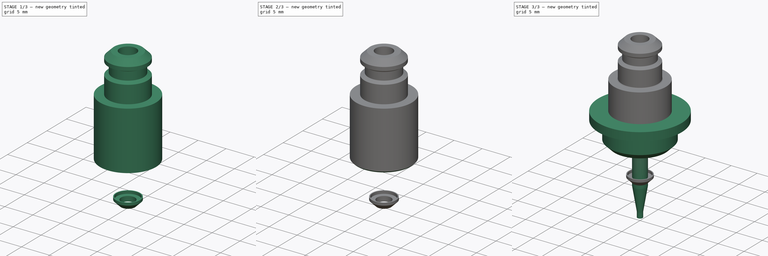
[diagram: build sequence overview — one tinted view per stage of 3, left to right]
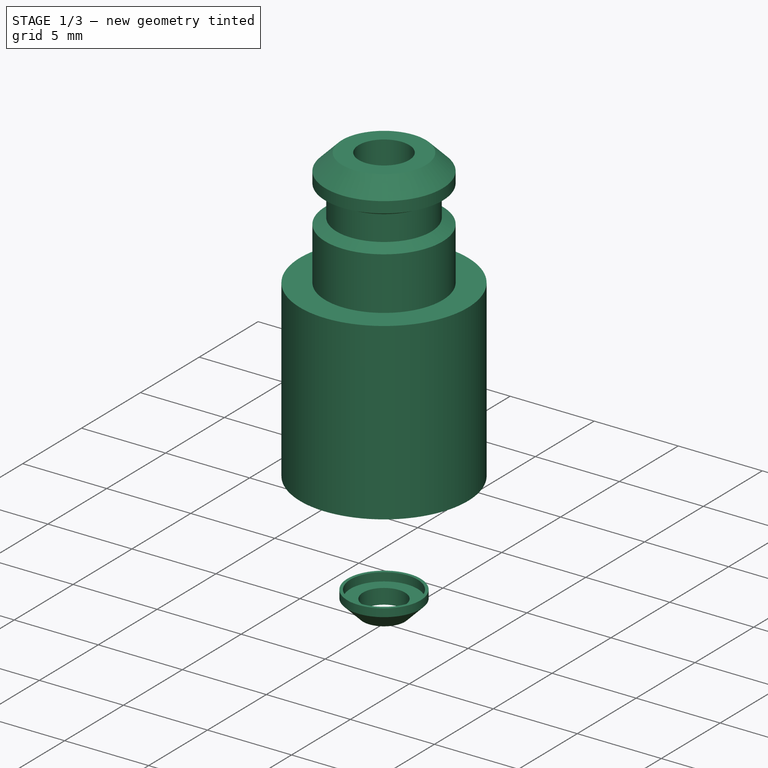
[diagram: stage 1 of 3 — iso view after this stage's code; geometry added in this stage tinted green]
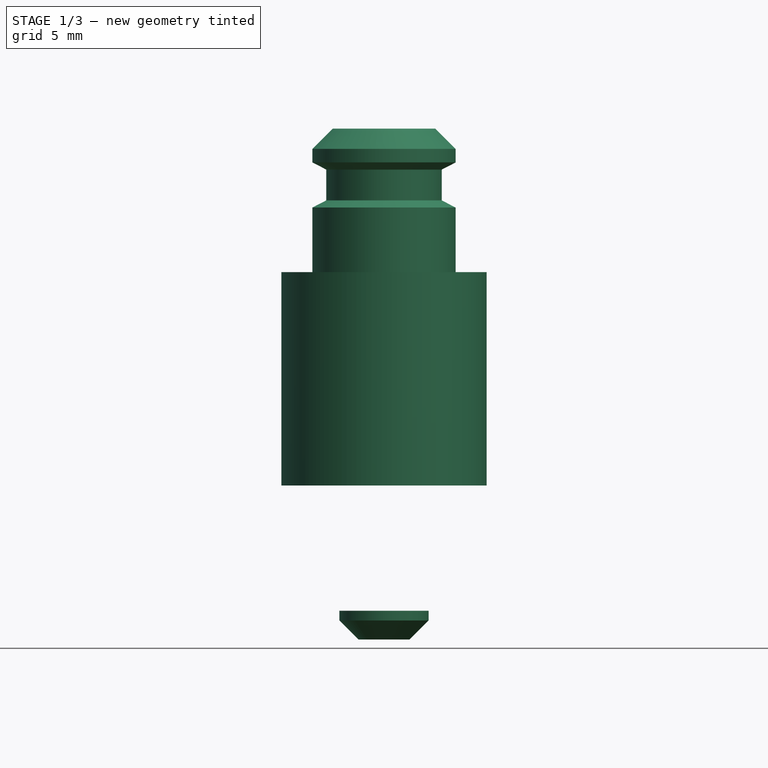
[diagram: stage 1 of 3 — front view after this stage's code; geometry added in this stage tinted green]
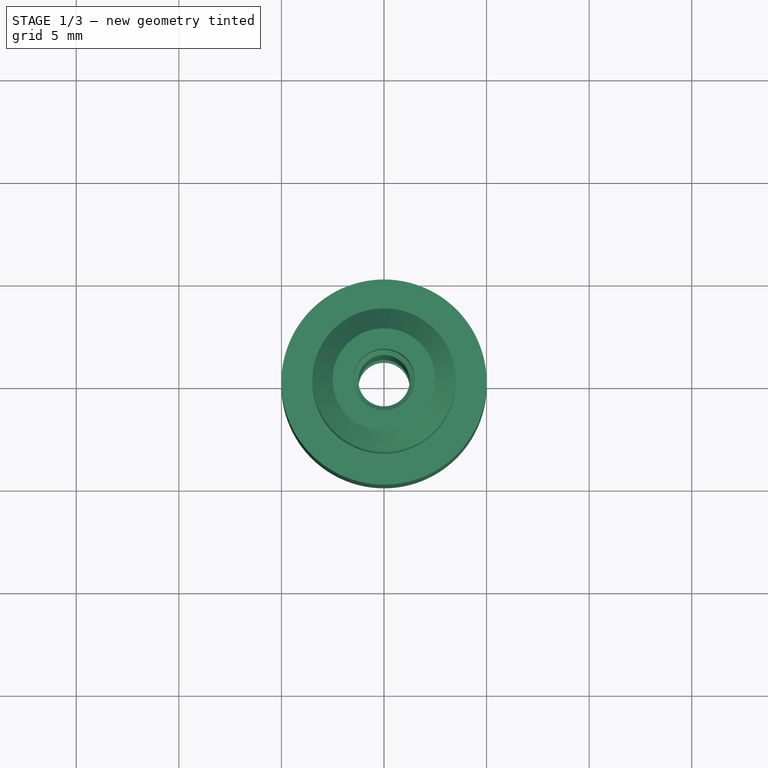
[diagram: stage 1 of 3 — top view after this stage's code; geometry added in this stage tinted green]
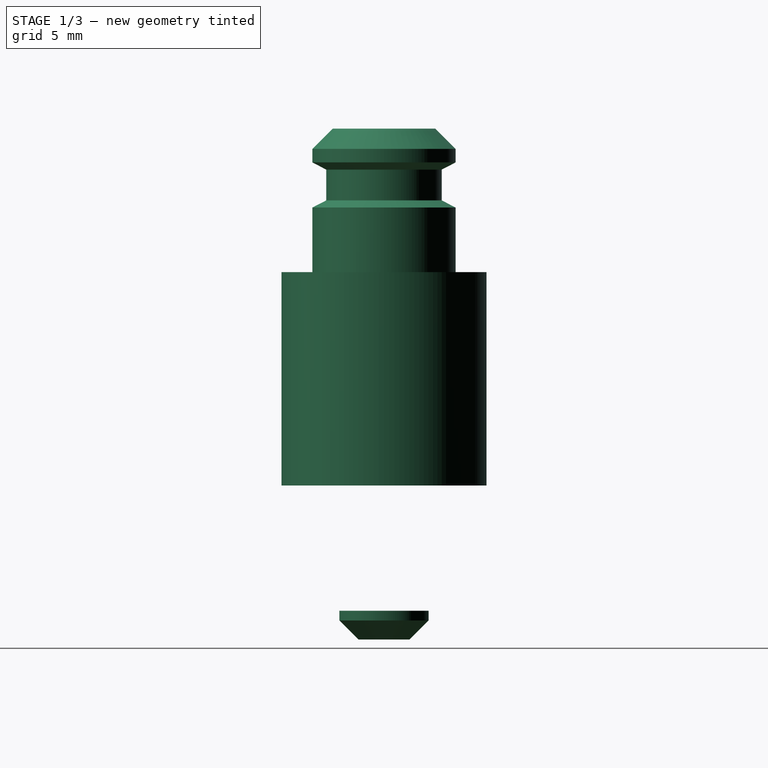
[diagram: stage 1 of 3 — right view after this stage's code; geometry added in this stage tinted green]
FCSTD DOCUMENT  (FreeCAD 0.15R4671 (Git))
Label: Juki-503
License: CreativeCommons Attribution-ShareAlike
LicenseURL: http://creativecommons.org/licenses/by-sa/4.0/
objects: Sketcher::SketchObject×5, PartDesign::Revolution×4, PartDesign::Chamfer×3, Part::Feature×2, PartDesign::Pocket×1
note: 20 computed .brp shape members not serialized (recipe doc carries the construction recipe); baked Part::Feature solids carry a one-line shape summary decoded from their .brp

FEATURE [Sketcher::SketchObject] Sketch001  label="plastic tip spring retainer"
  Placement = pos=(0,0,0) rot=(1,0,0;1.5708rad)
  sketch-geometry (4):
    g0: LineSegment StartX=1.25 StartY=7.5 StartZ=0 EndX=2.175 EndY=7.5 EndZ=0
    g1: LineSegment StartX=1.25 StartY=6.1 StartZ=0 EndX=1.25 EndY=7.5 EndZ=0
    g2: LineSegment StartX=2.175 StartY=7.5 StartZ=0 EndX=2.175 EndY=7.025 EndZ=0
    g3: LineSegment StartX=2.175 StartY=7.025 StartZ=0 EndX=1.25 EndY=6.1 EndZ=0
  constraints (12):
    c: Horizontal(g0)
    c: Vertical(g1)
    c: Coincident(g0,g1)
    c: DistanceY(g1) = 1.4
    c: DistanceX(g0) = 2.175
    c: DistanceX(g1) = 1.25
    c: DistanceY(g0) = 7.5
    c: Coincident(g0,g2)
    c: Vertical(g2)
    c: Coincident(g2,g3)
    c: Coincident(g3,g1)
    c: Angle(g3) = -2.35619
FEATURE [PartDesign::Revolution] Revolution001  label="plastic tip spring retainer"
  Angle = 360
  Axis = (0,0,1)
  Base = (0,0,0)
  Placement = pos=(0,0,0) rot=(1,0,0;1.5708rad)
  ReferenceAxis = -> Sketch001 [V_Axis]
  Reversed = true
  Sketch = -> Sketch001
FEATURE [Sketcher::SketchObject] Sketch003  label="body"
  Placement = pos=(0,0,0) rot=(1,0,0;1.5708rad)
  sketch-geometry (13):
    g0: LineSegment StartX=2.5 StartY=31 StartZ=0 EndX=3.49 EndY=30.01 EndZ=0
    g1: LineSegment StartX=3.49 StartY=30.01 StartZ=0 EndX=3.49 EndY=29.35 EndZ=0
    g2: LineSegment StartX=3.49 StartY=29.35 StartZ=0 EndX=2.815 EndY=29 EndZ=0
    g3: LineSegment StartX=2.815 StartY=29 StartZ=0 EndX=2.815 EndY=27.5 EndZ=0
    g4: LineSegment StartX=2.815 StartY=27.5 StartZ=0 EndX=3.49 EndY=27.15 EndZ=0
    g5: LineSegment StartX=3.49 StartY=27.15 StartZ=0 EndX=3.49 EndY=24 EndZ=0
    g6: LineSegment StartX=3.49 StartY=24 StartZ=0 EndX=5 EndY=24 EndZ=0
    g7: LineSegment StartX=5 StartY=24 StartZ=0 EndX=5 EndY=13.6 EndZ=0
    g8: LineSegment StartX=5 StartY=13.6 StartZ=0 EndX=1.25 EndY=13.6 EndZ=0
    g9: LineSegment StartX=1.25 StartY=13.6 StartZ=0 EndX=1.25 EndY=27.8498 EndZ=0
    g10: LineSegment StartX=2.5 StartY=31 StartZ=0 EndX=1.5 EndY=31 EndZ=0
    g11: LineSegment StartX=1.5 StartY=31 StartZ=0 EndX=1.5 EndY=28 EndZ=0
    g12: LineSegment StartX=1.5 StartY=28 StartZ=0 EndX=1.25 EndY=27.8498 EndZ=0
  constraints (39):
    c: Coincident(g0,g1)
    c: Coincident(g1,g2)
    c: Coincident(g2,g3)
    c: Vertical(g3)
    c: Coincident(g3,g4)
    c: Coincident(g4,g5)
    c: Vertical(g5)
    c: Coincident(g5,g6)
    c: Horizontal(g6)
    c: Coincident(g6,g7)
    c: Coincident(g7,g8)
    c: Coincident(g8,g9)
    c: Vertical(g9)
    c: Horizontal(g8)
    c: Vertical(g7)
    c: Vertical(g1)
    c: DistanceX(g4,g1) = 0
    c: Equal(g2,g4)
    c: DistanceX(g0) = 3.49
    c: DistanceX(g6) = 5
    c: Angle(g0,g1) = 2.35619
    c: DistanceY(g5,g0) = 7
    c: DistanceY(g3) = -1.5
    c: DistanceX(g2) = 2.815
    c: DistanceY(g4,g1) = 2.2
    c: DistanceY(g5) = -3.15
    c: DistanceX(g0) = 2.5
    c: DistanceX(g8) = 1.25
    c: DistanceY(g7) = 13.6
    c: DistanceY(g0) = 31
    c: Coincident(g0,g10)
    c: Coincident(g10,g11)
    c: Vertical(g11)
    c: Coincident(g11,g12)
    c: Coincident(g12,g9)
    c: Angle(g11,g12) = 2.11185
    c: DistanceX(g10) = 1.5
    c: DistanceY(g11) = -3
    c: Horizontal(g10)
FEATURE [PartDesign::Revolution] Revolution003  label="body"
  Angle = 360
  Axis = (0,0,1)
  Base = (0,0,0)
  Placement = pos=(0,0,0) rot=(1,0,0;1.5708rad)
  ReferenceAxis = -> Sketch003 [V_Axis]
  Reversed = true
  Sketch = -> Sketch003
FEATURE [Sketcher::SketchObject] Sketch004  label="spring recess"
  ExternalGeometry = -> [Revolution001]
  Placement = pos=(0,0,7.5) rot=(0,0,1;3.14159rad)
  Support = -> Revolution001 [Face1]
  sketch-geometry (1):
    g0: Circle CenterX=0 CenterY=0 CenterZ=0 NormalX=0 NormalY=0 NormalZ=1 Radius=2
  constraints (2):
    c: Radius(g0) = 2
    c: Coincident(g0,g-1)
FEATURE [PartDesign::Pocket] Pocket  label="plastic tip spring retainer"
  Length = 0.5
  Placement = pos=(0,0,0) rot=(1,0,0;1.5708rad)
  Sketch = -> Sketch004
  Type = 0
FEATURE [Part::Feature] Compound  label="spring 4x5x0.3mm"
  Placement = pos=(0,0,7.5) rot=(0,0,1;0rad)
  shape: bbox 5.905 x 6.596 x 5.57 mm, 8 faces, 3 solids (baked)
FEATURE [Part::Feature] Compound001001  label="Juki-503"
  Placement = pos=(24,0,0) rot=(0,0,1;0rad)
  shape: bbox 16 x 16 x 31 mm, 47 faces, 7 solids (baked)
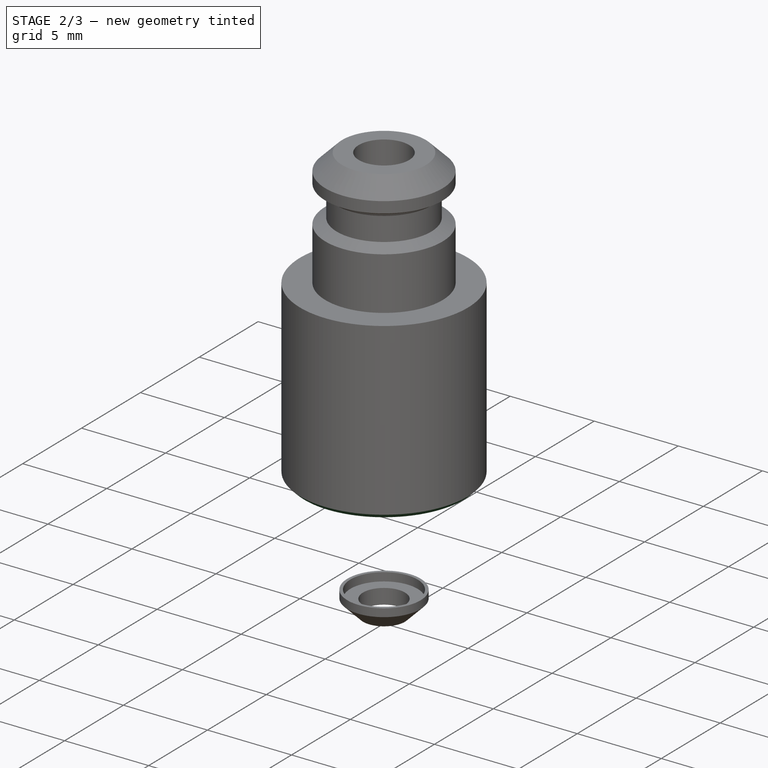
[diagram: stage 2 of 3 — iso view after this stage's code; geometry added in this stage tinted green]
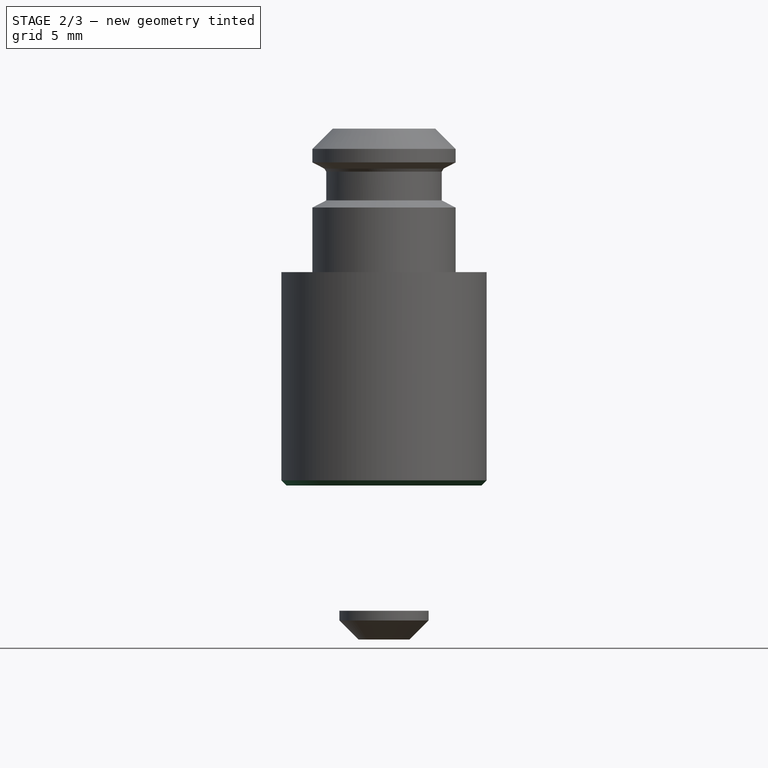
[diagram: stage 2 of 3 — front view after this stage's code; geometry added in this stage tinted green]
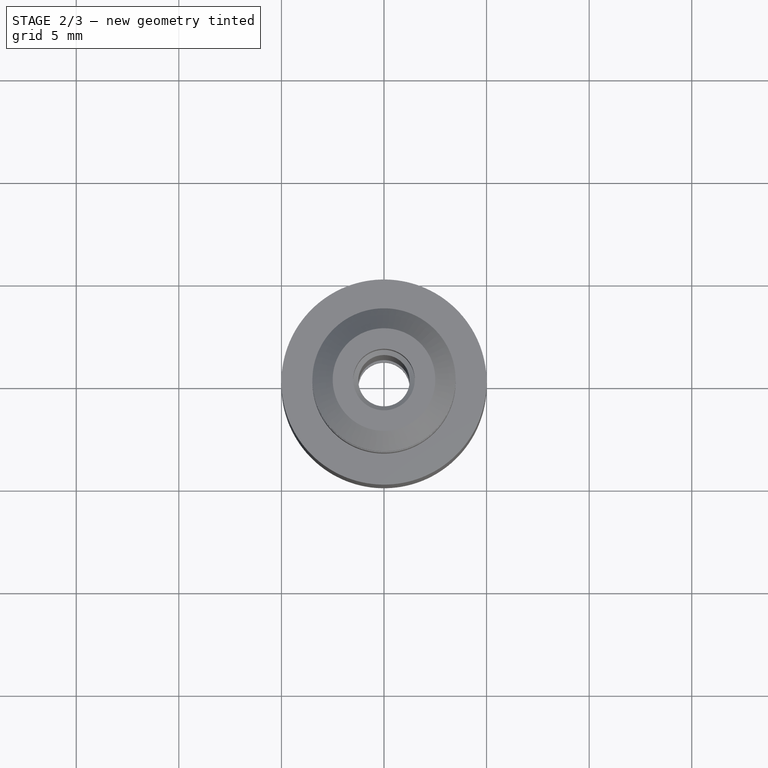
[diagram: stage 2 of 3 — top view after this stage's code; geometry added in this stage tinted green]
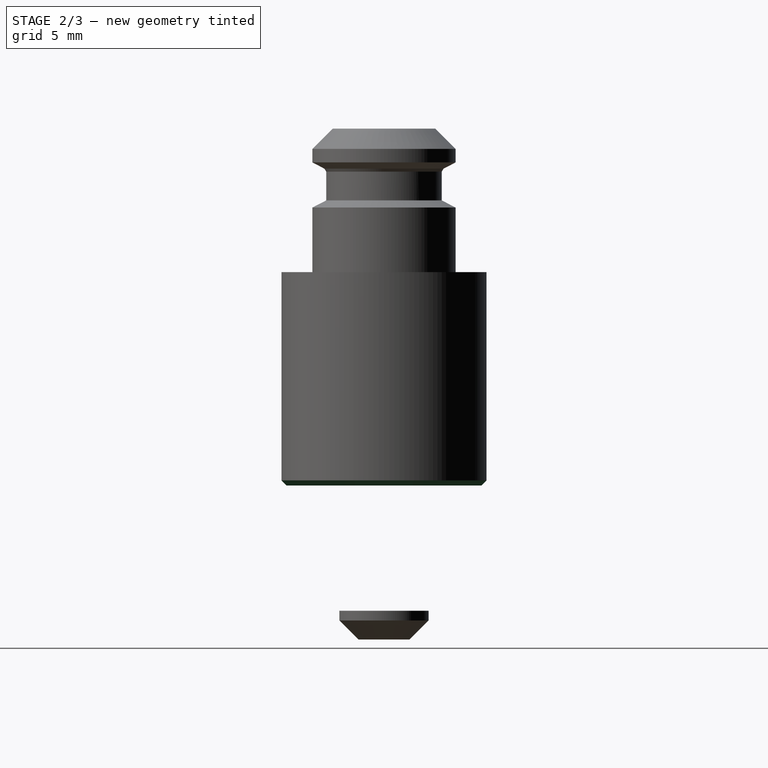
[diagram: stage 2 of 3 — right view after this stage's code; geometry added in this stage tinted green]
FEATURE [PartDesign::Chamfer] Chamfer  label="body"
  Base = -> Revolution003 [Edge15]
  Placement = pos=(0,0,0) rot=(1,0,0;1.5708rad)
  Size = 0.25
FEATURE [PartDesign::Chamfer] Chamfer001  label="body"
  Base = -> Chamfer [Edge16]
  Placement = pos=(0,0,0) rot=(1,0,0;1.5708rad)
  Size = 0.1
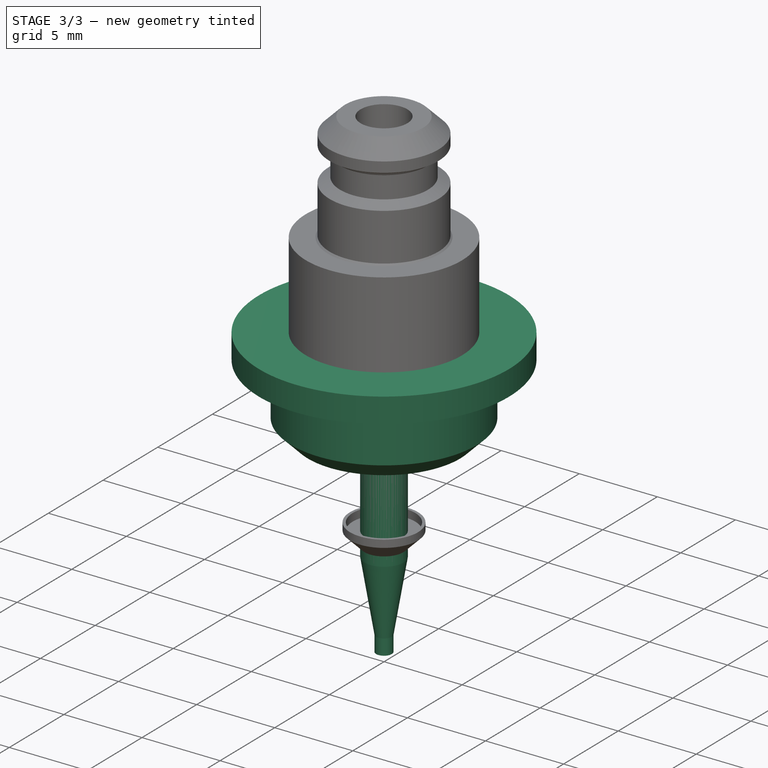
[diagram: stage 3 of 3 — iso view after this stage's code; geometry added in this stage tinted green]
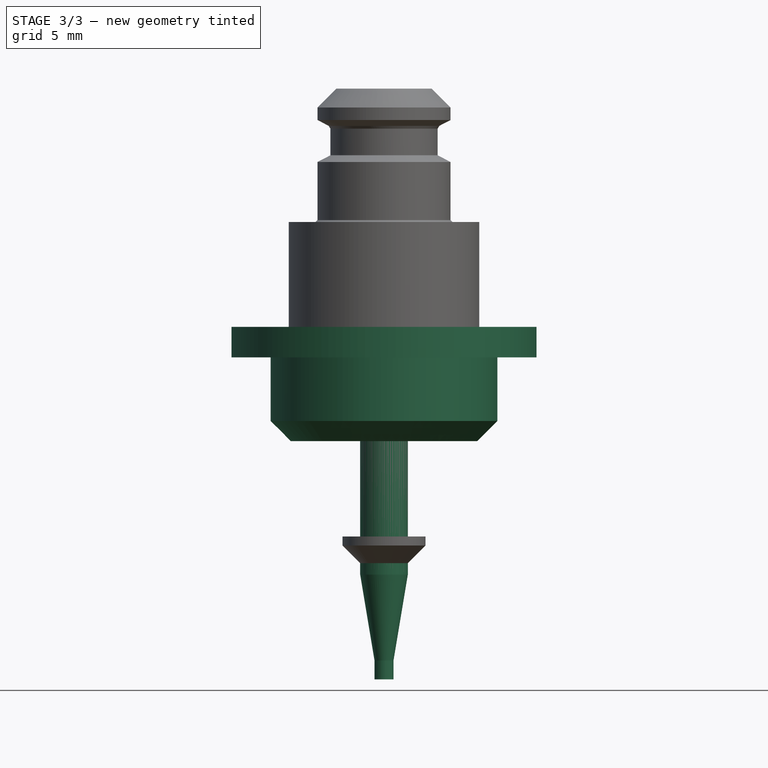
[diagram: stage 3 of 3 — front view after this stage's code; geometry added in this stage tinted green]
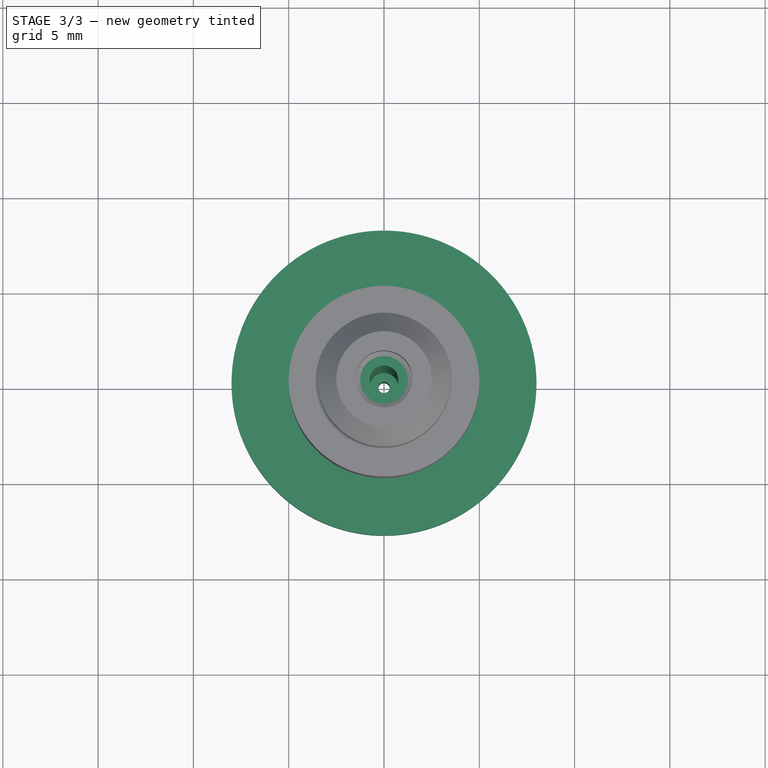
[diagram: stage 3 of 3 — top view after this stage's code; geometry added in this stage tinted green]
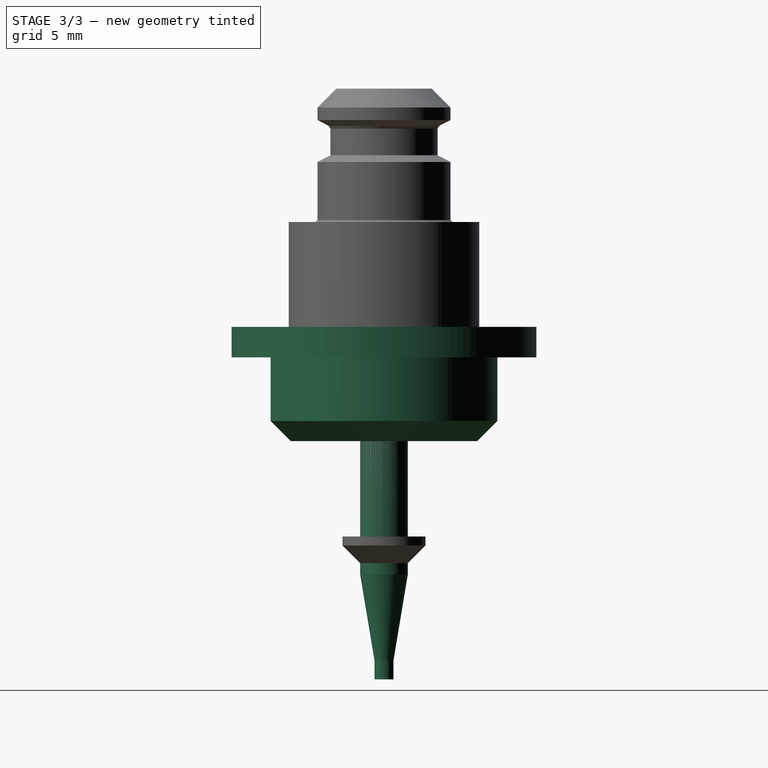
[diagram: stage 3 of 3 — right view after this stage's code; geometry added in this stage tinted green]
FEATURE [Sketcher::SketchObject] Sketch  label="metal tip"
  Placement = pos=(0,0,0) rot=(1,0,0;1.5708rad)
  sketch-geometry (8):
    g0: LineSegment StartX=0.5 StartY=0 StartZ=0 EndX=0.5 EndY=1 EndZ=0
    g1: LineSegment StartX=0.5 StartY=1 StartZ=0 EndX=1.25 EndY=5.5 EndZ=0
    g2: LineSegment StartX=1.25 StartY=5.5 StartZ=0 EndX=1.25 EndY=28.1 EndZ=0
    g3: LineSegment StartX=1.25 StartY=28.1 StartZ=0 EndX=0.75 EndY=28.1 EndZ=0
    g4: LineSegment StartX=0.75 StartY=28.1 StartZ=0 EndX=0.75 EndY=5.5 EndZ=0
    g5: LineSegment StartX=0.75 StartY=5.5 StartZ=0 EndX=0.3 EndY=5.5 EndZ=0
    g6: LineSegment StartX=0.3 StartY=5.5 StartZ=0 EndX=0.3 EndY=0 EndZ=0
    g7: LineSegment StartX=0.3 StartY=0 StartZ=0 EndX=0.5 EndY=0 EndZ=0
  constraints (24):
    c: PointOnObject(g0,g-1)
    c: Vertical(g0)
    c: DistanceX(g0) = 0.5
    c: DistanceY(g0) = 1
    c: Coincident(g0,g1)
    c: Coincident(g1,g2)
    c: Vertical(g2)
    c: Coincident(g2,g3)
    c: Horizontal(g3)
    c: Coincident(g3,g4)
    c: Vertical(g4)
    c: Coincident(g4,g5)
    c: Horizontal(g5)
    c: Coincident(g5,g6)
    c: Vertical(g6)
    c: Coincident(g6,g7)
    c: Coincident(g7,g0)
    c: Horizontal(g7)
    c: DistanceX(g6) = 0.3
    c: DistanceY(g2) = 28.1
    c: DistanceY(g1,g4) = 0
    c: DistanceX(g1) = 1.25
    c: DistanceY(g1) = 5.5
    c: DistanceX(g4) = 0.75
FEATURE [PartDesign::Revolution] Revolution  label="metal tip"
  Angle = 360
  Axis = (0,0,1)
  Base = (0,0,0)
  Placement = pos=(0,0,0) rot=(1,0,0;1.5708rad)
  ReferenceAxis = -> Sketch [V_Axis]
  Reversed = true
  Sketch = -> Sketch
FEATURE [Sketcher::SketchObject] Sketch002  label="plastic retainer"
  Placement = pos=(0,0,0) rot=(1,0,0;1.5708rad)
  sketch-geometry (9):
    g0: LineSegment StartX=2 StartY=12.5 StartZ=0 EndX=4.88934 EndY=12.5 EndZ=0
    g1: LineSegment StartX=5.95 StartY=16.9 StartZ=0 EndX=8 EndY=16.9 EndZ=0
    g2: LineSegment StartX=8 StartY=16.9 StartZ=0 EndX=8 EndY=18.5 EndZ=0
    g3: LineSegment StartX=8 StartY=18.5 StartZ=0 EndX=5 EndY=18.5 EndZ=0
    g4: LineSegment StartX=5 StartY=18.5 StartZ=0 EndX=5 EndY=13.5 EndZ=0
    g5: LineSegment StartX=5 StartY=13.5 StartZ=0 EndX=2 EndY=13.5 EndZ=0
    g6: LineSegment StartX=2 StartY=13.5 StartZ=0 EndX=2 EndY=12.5 EndZ=0
    g7: LineSegment StartX=4.88934 StartY=12.5 StartZ=0 EndX=5.95 EndY=13.5607 EndZ=0
    g8: LineSegment StartX=5.95 StartY=13.5607 StartZ=0 EndX=5.95 EndY=16.9 EndZ=0
  constraints (27):
    c: Horizontal(g0)
    c: Horizontal(g1)
    c: Coincident(g1,g2)
    c: Vertical(g2)
    c: Coincident(g2,g3)
    c: Horizontal(g3)
    c: Coincident(g3,g4)
    c: Vertical(g4)
    c: Coincident(g4,g5)
    c: Horizontal(g5)
    c: Coincident(g5,g6)
    c: Coincident(g6,g0)
    c: Vertical(g6)
    c: DistanceY(g0) = 12.5
    c: DistanceY(g2) = 1.6
    c: DistanceY(g2) = 18.5
    c: Coincident(g0,g7)
    c: Coincident(g7,g8)
    c: Vertical(g8)
    c: Angle(g8,g7) = 2.35619
    c: Coincident(g8,g1)
    c: DistanceX(g1) = 5.95
    c: DistanceX(g0) = 2
    c: DistanceX(g3) = 5
    c: DistanceY(g6) = -1
    c: Distance(g7) = 1.5
    c: DistanceX(g2) = 8
FEATURE [PartDesign::Revolution] Revolution002  label="plastic retainer"
  Angle = 360
  Axis = (0,0,1)
  Base = (0,0,0)
  Placement = pos=(0,0,0) rot=(1,0,0;1.5708rad)
  ReferenceAxis = -> Sketch002 [V_Axis]
  Reversed = true
  Sketch = -> Sketch002
FEATURE [PartDesign::Chamfer] Chamfer002  label="body"
  Base = -> Chamfer001 [Edge10]
  Placement = pos=(0,0,0) rot=(1,0,0;1.5708rad)
  Size = 0.1
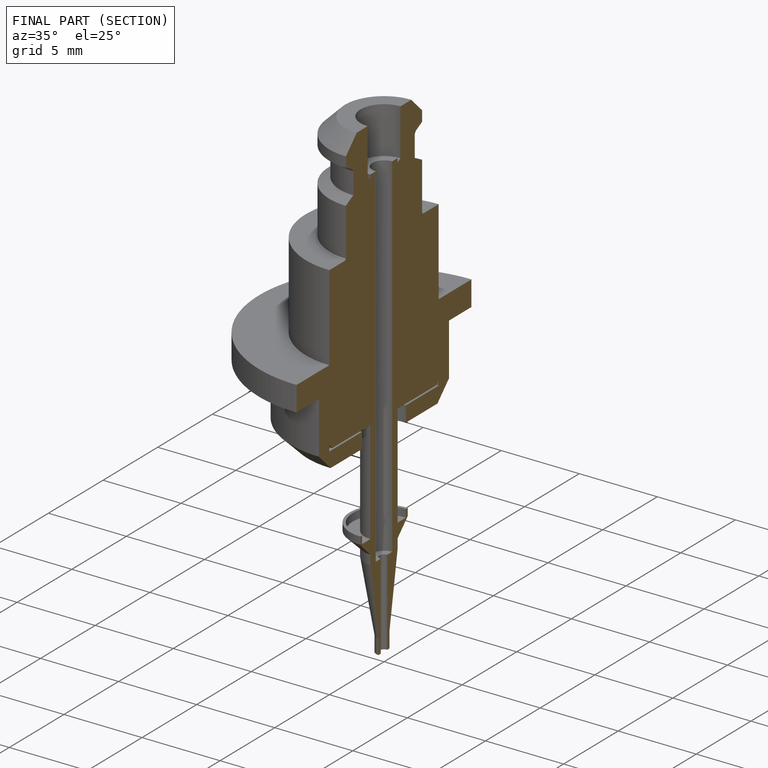
[diagram: finished part — half-section view (interior)]
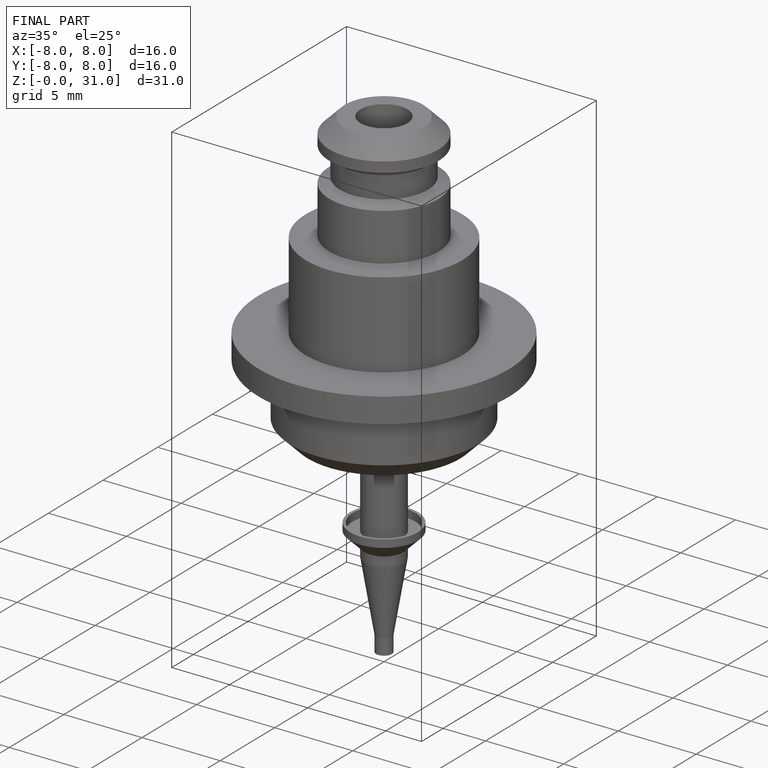
[diagram: finished part — iso view with bounding-box wireframe]
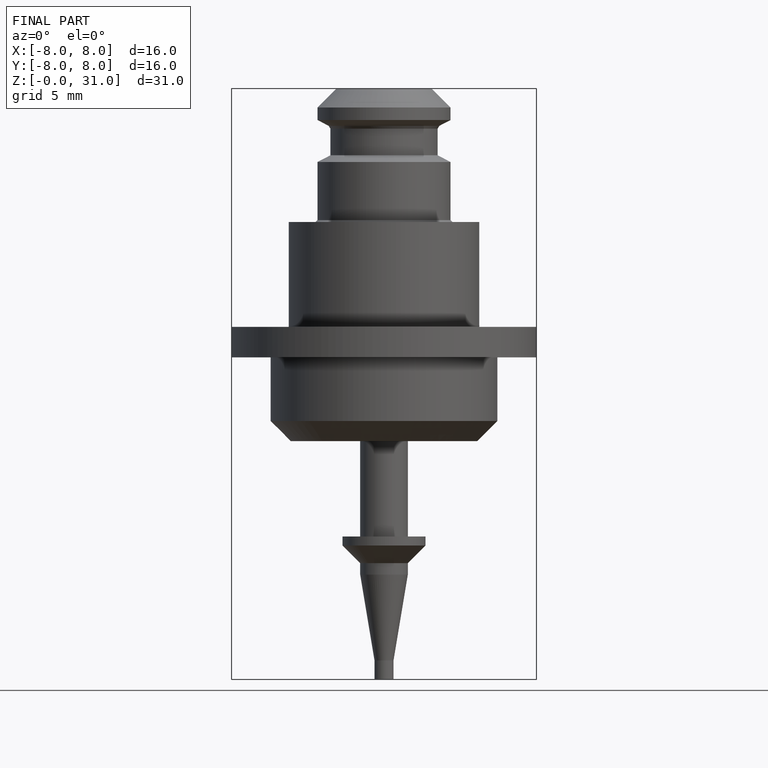
[diagram: finished part — front view with bounding-box wireframe]
